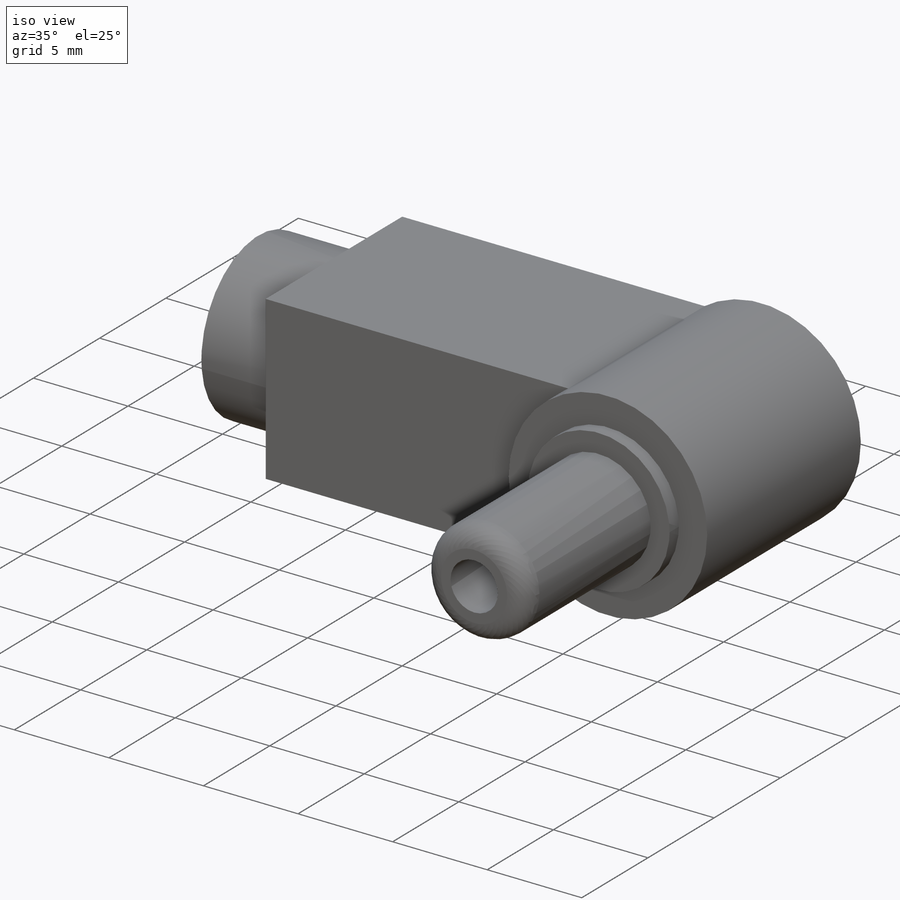
[diagram: iso view]
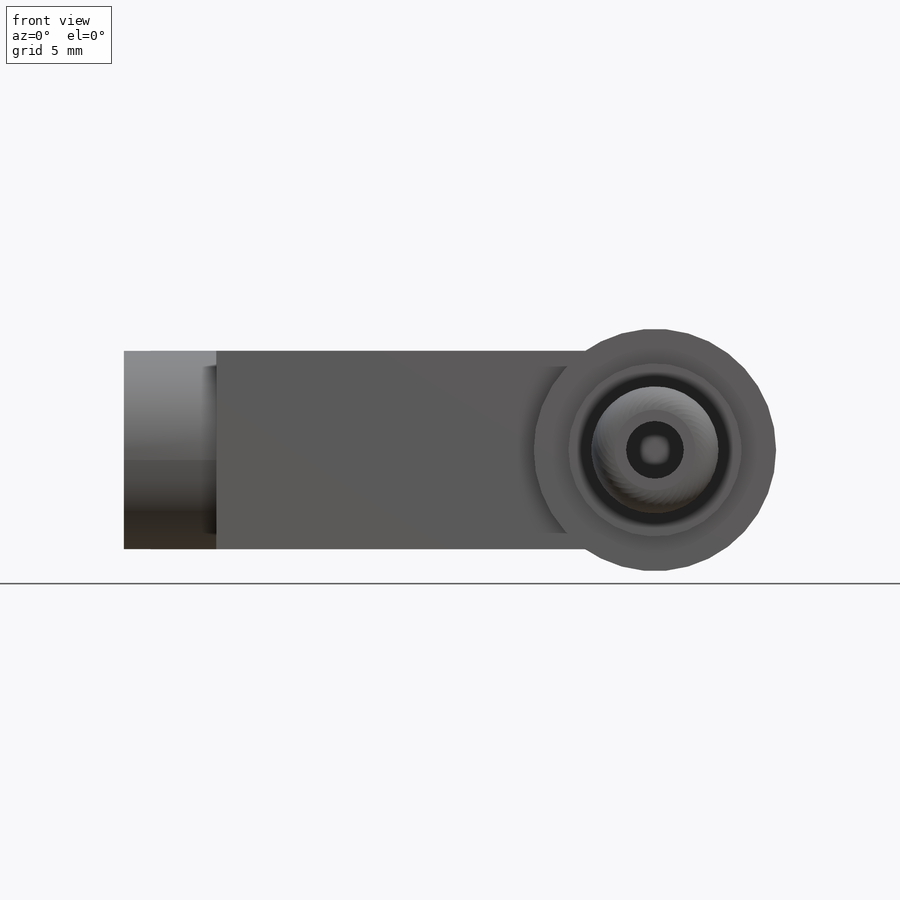
[diagram: front view]
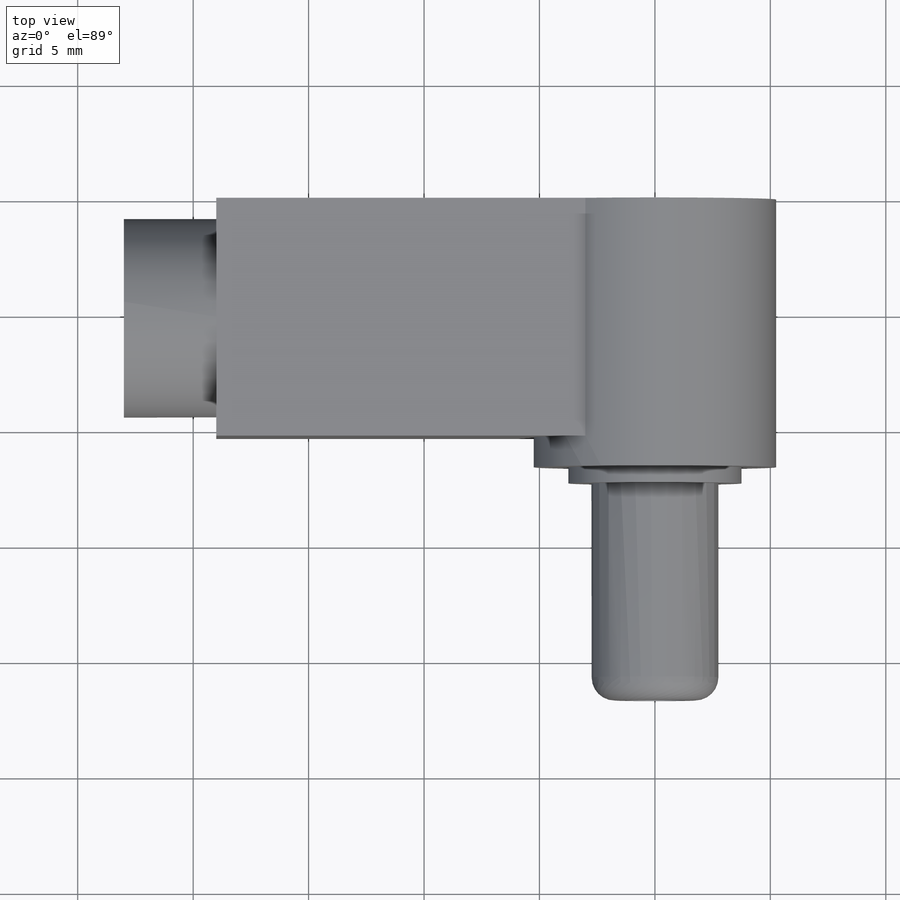
[diagram: top view]
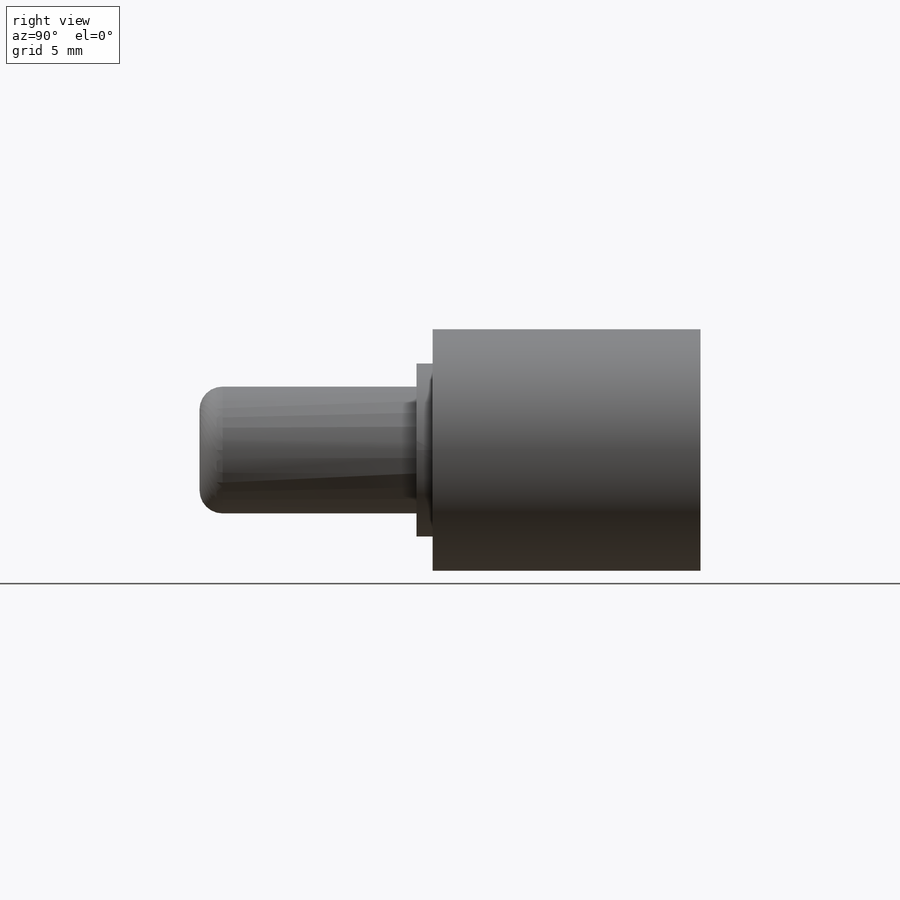
[diagram: right view]
SOLIDWORKS PART (.sldprt)
format: sldprt  version: not decoded by parser v0  size: 233,984 bytes
history: native  units: mm
features: sketch x5, extrude x5, material x1, fillet x1 (+11 scaffold rows collapsed)
feature tree (23):
  scaffold x11  (default folders/planes/origin — collapsed)
  material  "Material <not specified>"
  sketch  "Sketch1"  dims[D1=5.25mm D2=8.6mm D3=19.0mm]
  extrude  "Boss-Extrude1"  Depth=10.3mm
  sketch  "Sketch2"
  extrude  "Boss-Extrude2"  Depth=1.3mm
  sketch  "Sketch3"  dims[D1=7.5mm]
  extrude  "Boss-Extrude3"  Depth=0.7mm
  sketch  "Sketch4"  dims[D1=5.5mm D2=2.5mm]
  extrude  "Boss-Extrude4"  Depth=9.4mm
  fillet  "Fillet1"  Radius=1mm
  sketch  "Sketch5"  dims[c1.D2=5.5mm c1.D1=5.15mm c2.D2=5.2mm]
  extrude  "Boss-Extrude5"  Depth=4mm
decode coverage: 10 of 11 modeling features carry decoded parameters
note: suppression state not decoded; provenance and decode notes live in map.json
